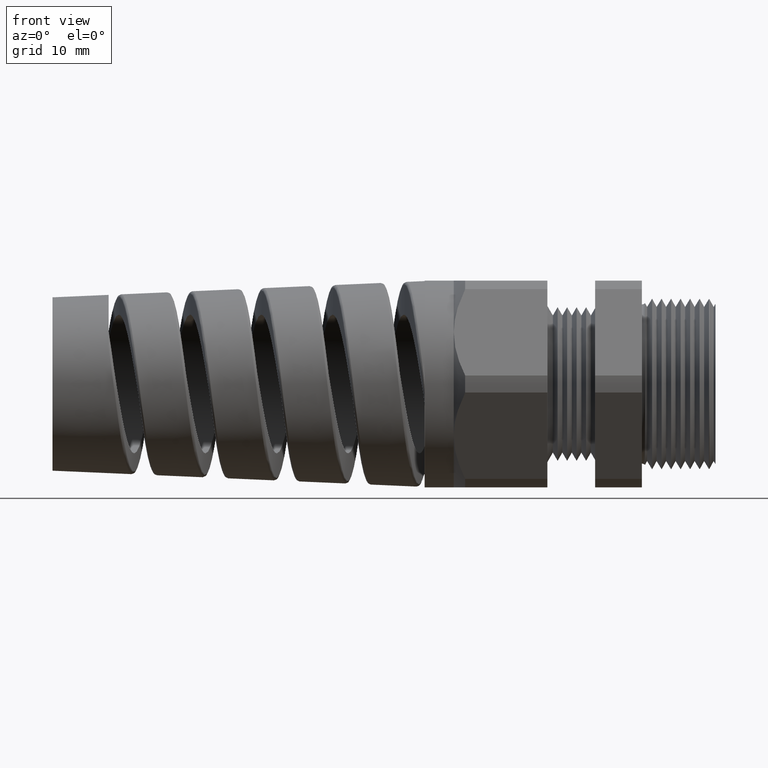
[diagram: clean part render]
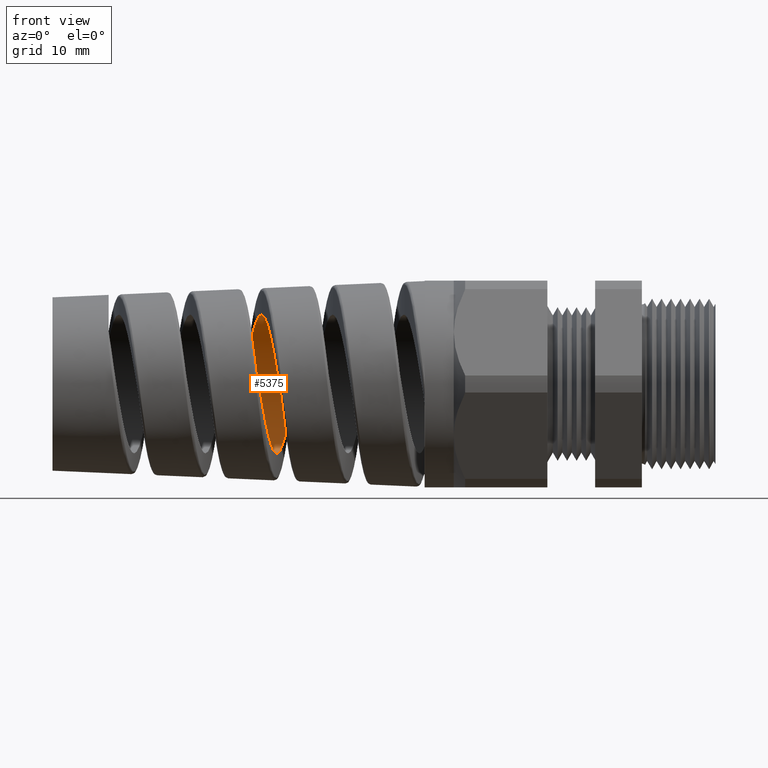
[diagram: same view with one face highlighted and labeled with its STEP entity id]
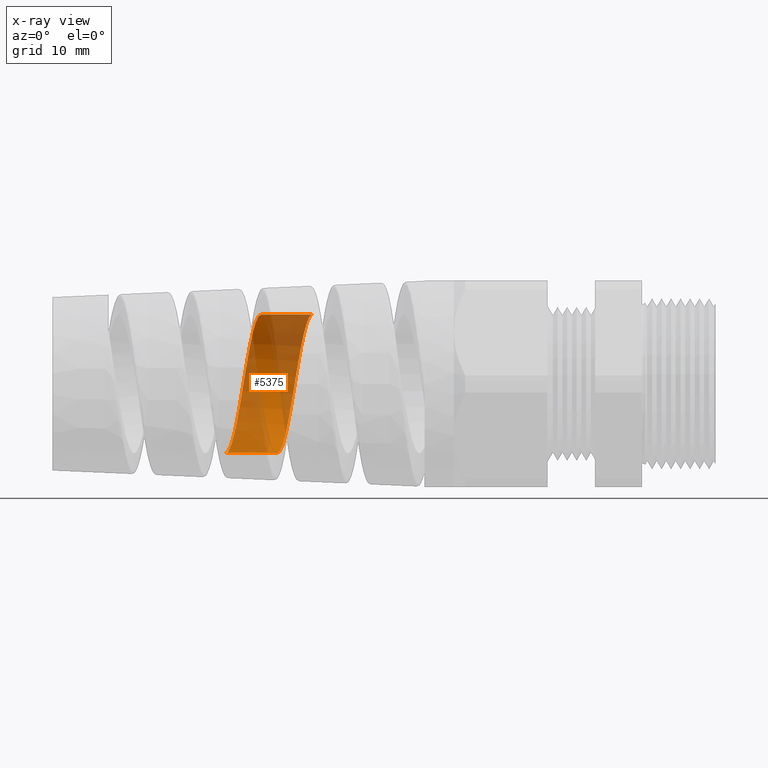
[diagram: x-ray of the same camera — body ghosted, the highlighted face saturated]
A machine part, front view. The second image highlights one B-rep face of the part: STEP entity #5375.
The next image is the same camera in x-ray: the body ghosted, the highlighted face saturated — about 64% of this face is hidden behind the body in this view.
In plain terms, the highlighted cylindrical surface (partial cylindrical patch) has radius 7.4168 mm, axis along (1, 0, 0).
Its self-contained STEP definition (entity closure, byte-faithful):
#1143 = ORIENTED_EDGE ( 'NONE', *, *, #1144, .T. ) ;
#1144 = EDGE_CURVE ( 'NONE', #9089, #9114, #4748, .T. ) ;
#1145 = ORIENTED_EDGE ( 'NONE', *, *, #9086, .T. ) ;
#1146 = ORIENTED_EDGE ( 'NONE', *, *, #1147, .T. ) ;
#1147 = EDGE_CURVE ( 'NONE', #8925, #9100, #4774, .T. ) ;
#1470 = ORIENTED_EDGE ( 'NONE', *, *, #9101, .F. ) ;
#4490 = CARTESIAN_POINT ( 'NONE',  ( -1.835008590539918900, 0.06628252923120450700, -0.2845399725685768800 ) ) ;
#4491 = CARTESIAN_POINT ( 'NONE',  ( -1.839724824223382600, 0.03800162559337094700, -0.2901540196769796800 ) ) ;
#4492 = CARTESIAN_POINT ( 'NONE',  ( -1.833430171448384900, 0.07565399582245577200, -0.2821910254911357800 ) ) ;
#4743 = CARTESIAN_POINT ( 'NONE',  ( -1.927172396364699400, 0.09411178506849399200, 0.2770720832975551700 ) ) ;
#4744 = CARTESIAN_POINT ( 'NONE',  ( -1.924060416900707800, 0.07581038820734067900, 0.2826449708920728600 ) ) ;
#4745 = CARTESIAN_POINT ( 'NONE',  ( -1.917761459007860900, 0.03800626351236475300, 0.2901567136299919000 ) ) ;
#4746 = CARTESIAN_POINT ( 'NONE',  ( -1.914661126411952400, 0.01903279155053612000, 0.2920000000000624300 ) ) ;
#4747 = CARTESIAN_POINT ( 'NONE',  ( -1.911550332857960200, -9.587207108140227300E-013, 0.2919999999999999300 ) ) ;
#4748 = B_SPLINE_CURVE_WITH_KNOTS ( 'NONE', 3,
 ( #4747, #4746, #4745, #4744, #4743, #4813, #4812, #4811, #4810, #4809, #4808, #4807, #4806, #4805, #4804, #4803, #4802, #4801, #4800, #4799, #4798, #4797, #4796, #4795, #4794, #4793, #4792, #4791, #4790, #4789, #4788, #4787, #4786, #4785, #4784, #4783, #4782, #4781, #4780, #4779, #4778, #4777 ),
 .UNSPECIFIED., .F., .F.,
 ( 4, 2, 2, 2, 2, 2, 2, 2, 2, 2, 2, 2, 2, 2, 2, 2, 2, 2, 2, 2, 4 ),
 ( 0.1212132349054047800, 0.1226819882888340000, 0.1241507416722632400, 0.1248851183639778500, 0.1256194950556924800, 0.1270882484391217000, 0.1285570018225509200, 0.1300257552059801700, 0.1307601318976947800, 0.1314945085894093900, 0.1329632619728386100, 0.1344320153562678600, 0.1351663920479824800, 0.1359007687396970900, 0.1373695221231263100, 0.1388382755065555300, 0.1403070288899847500, 0.1410414055816993600, 0.1417757822734139700, 0.1432445356568431700, 0.1447132890402723900 ),
 .UNSPECIFIED. ) ;
#4771 = CARTESIAN_POINT ( 'NONE',  ( -1.842825194809832600, 0.01904566681049143000, -0.2920000000000492200 ) ) ;
#4772 = CARTESIAN_POINT ( 'NONE',  ( -1.845941189765094400, -7.576700375818644900E-013, -0.2919999999999999300 ) ) ;
#4774 = B_SPLINE_CURVE_WITH_KNOTS ( 'NONE', 3,
 ( #4772, #4771, #4491, #4490, #4492, #4859, #4858, #4857, #4856, #4855, #4854, #4853, #4852, #4851, #4850, #4849, #4848, #4847, #4846, #4845, #4844, #4843, #4842, #4841, #4840, #4839, #4838, #4837, #4836, #4835, #4834, #4833, #4832, #4831, #4830, #4829, #4828, #4827, #4826, #4825, #4824, #4823, #4822, #4821, #4820, #4819, #4818, #4817 ),
 .UNSPECIFIED., .F., .F.,
 ( 4, 2, 2, 2, 2, 2, 2, 2, 2, 2, 2, 2, 2, 2, 2, 2, 2, 2, 2, 2, 2, 2, 2, 4 ),
 ( 0.1108696754372933000, 0.1123389271520545400, 0.1130735530094351500, 0.1138081788668157800, 0.1145428047241964000, 0.1152774305815770200, 0.1167466822963382600, 0.1174813081537188800, 0.1182159340110994900, 0.1196851857258607300, 0.1204198115832413600, 0.1211544374406219900, 0.1226236891553832100, 0.1233583150127638400, 0.1240929408701444700, 0.1248275667275250800, 0.1255621925849057000, 0.1270314442996669500, 0.1285006960144282100, 0.1299699477291894300, 0.1307045735865700600, 0.1314391994439506900, 0.1329084511587119200, 0.1343777028734731700 ),
 .UNSPECIFIED. ) ;
#4777 = CARTESIAN_POINT ( 'NONE',  ( -2.061481766486365200, 6.220023044168193400E-015, -0.2919999999999999800 ) ) ;
#4778 = CARTESIAN_POINT ( 'NONE',  ( -2.058371126605370400, 0.01903190467245464600, -0.2919999999999997000 ) ) ;
#4779 = CARTESIAN_POINT ( 'NONE',  ( -2.055269675412615600, 0.03800701964876594000, -0.2901569214517650800 ) ) ;
#4780 = CARTESIAN_POINT ( 'NONE',  ( -2.048968847912352200, 0.07582006960116534400, -0.2826426890167545400 ) ) ;
#4781 = CARTESIAN_POINT ( 'NONE',  ( -2.045859413055716400, 0.09411111890419172900, -0.2770723475519482600 ) ) ;
#4782 = CARTESIAN_POINT ( 'NONE',  ( -2.041194997017380600, 0.1204798660323442000, -0.2661561552935888300 ) ) ;
#4783 = CARTESIAN_POINT ( 'NONE',  ( -2.039638832991393700, 0.1290999900564052400, -0.2620856231554796200 ) ) ;
#4784 = CARTESIAN_POINT ( 'NONE',  ( -2.036508673530955900, 0.1459924057735040900, -0.2530650089479469800 ) ) ;
#4785 = CARTESIAN_POINT ( 'NONE',  ( -2.034927075478601300, 0.1543019325088521000, -0.2480862650623232900 ) ) ;
#4786 = CARTESIAN_POINT ( 'NONE',  ( -2.030226816928205400, 0.1782090931734449700, -0.2321056747786600600 ) ) ;
#4787 = CARTESIAN_POINT ( 'NONE',  ( -2.027131672498813800, 0.1929158003116876500, -0.2200251639956014000 ) ) ;
#4788 = CARTESIAN_POINT ( 'NONE',  ( -2.020899201581703800, 0.2198910295955499600, -0.1930686766531514700 ) ) ;
#4789 = CARTESIAN_POINT ( 'NONE',  ( -2.017734688814023500, 0.2322335362483403400, -0.1780321511139902300 ) ) ;
#4790 = CARTESIAN_POINT ( 'NONE',  ( -2.011498605259076600, 0.2534212477369053900, -0.1463062998785560600 ) ) ;
#4791 = CARTESIAN_POINT ( 'NONE',  ( -2.008403461883655700, 0.2623996206519053600, -0.1295278740511081300 ) ) ;
#4792 = CARTESIAN_POINT ( 'NONE',  ( -2.003707119169917000, 0.2734053822998912500, -0.1029818173177487900 ) ) ;
#4793 = CARTESIAN_POINT ( 'NONE',  ( -2.002125771264694700, 0.2766695219055483300, -0.09386041749659704300 ) ) ;
#4794 = CARTESIAN_POINT ( 'NONE',  ( -1.998993868141977900, 0.2822274229774220400, -0.07552141447035710900 ) ) ;
#4795 = CARTESIAN_POINT ( 'NONE',  ( -1.997437069635046700, 0.2845397579984874600, -0.06626948344003412400 ) ) ;
#4796 = CARTESIAN_POINT ( 'NONE',  ( -1.992771911199000800, 0.2901053176298934400, -0.03827503039641126600 ) ) ;
#4797 = CARTESIAN_POINT ( 'NONE',  ( -1.989668276005744300, 0.2920001916185342400, -0.01929123438346434400 ) ) ;
#4798 = CARTESIAN_POINT ( 'NONE',  ( -1.983361809603649800, 0.2919998083526604300, 0.01929703478019656100 ) ) ;
#4799 = CARTESIAN_POINT ( 'NONE',  ( -1.980260259449853500, 0.2901054662317486000, 0.03827425434467220800 ) ) ;
#4800 = CARTESIAN_POINT ( 'NONE',  ( -1.975595028112758100, 0.2845397087213393200, 0.06626974559759918300 ) ) ;
#4801 = CARTESIAN_POINT ( 'NONE',  ( -1.974038075981751500, 0.2822271443022140200, 0.07552267014128860600 ) ) ;
#4802 = CARTESIAN_POINT ( 'NONE',  ( -1.970905183828790100, 0.2766680770433079800, 0.09386484875293227300 ) ) ;
#4803 = CARTESIAN_POINT ( 'NONE',  ( -1.969323546470858900, 0.2734037894867499800, 0.1029858877106655500 ) ) ;
#4804 = CARTESIAN_POINT ( 'NONE',  ( -1.964627491067406900, 0.2623997402596952600, 0.1295271284508377200 ) ) ;
#4805 = CARTESIAN_POINT ( 'NONE',  ( -1.961532911561967700, 0.2534219822901895800, 0.1463053116087967800 ) ) ;
#4806 = CARTESIAN_POINT ( 'NONE',  ( -1.955297122504476800, 0.2322317476646494300, 0.1780347176520884200 ) ) ;
#4807 = CARTESIAN_POINT ( 'NONE',  ( -1.952132507323167900, 0.2198891621142743400, 0.1930706073712889200 ) ) ;
#4808 = CARTESIAN_POINT ( 'NONE',  ( -1.945899610562509300, 0.1929166787161176500, 0.2200242216647482500 ) ) ;
#4809 = CARTESIAN_POINT ( 'NONE',  ( -1.942804160233673900, 0.1782096707754065600, 0.2321055309837090900 ) ) ;
#4810 = CARTESIAN_POINT ( 'NONE',  ( -1.938103732483577000, 0.1542978178972851900, 0.2480888942696010400 ) ) ;
#4811 = CARTESIAN_POINT ( 'NONE',  ( -1.936522587776422300, 0.1459887125989037800, 0.2530670788897459400 ) ) ;
#4812 = CARTESIAN_POINT ( 'NONE',  ( -1.933393190047953300, 0.1290990416550695200, 0.2620860318060023700 ) ) ;
#4813 = CARTESIAN_POINT ( 'NONE',  ( -1.931837175637484100, 0.1204797594736392400, 0.2661561936440337000 ) ) ;
#4817 = CARTESIAN_POINT ( 'NONE',  ( -1.695872655686225600, -9.706095852270749000E-013, 0.2919999999999999300 ) ) ;
#4818 = CARTESIAN_POINT ( 'NONE',  ( -1.698985231698055600, 0.01902453244057054200, 0.2920000000000633200 ) ) ;
#4819 = CARTESIAN_POINT ( 'NONE',  ( -1.702103482538662900, 0.03808557415844986100, 0.2901457300574203400 ) ) ;
#4820 = CARTESIAN_POINT ( 'NONE',  ( -1.708405332203782700, 0.07587061634992503500, 0.2826282102059430300 ) ) ;
#4821 = CARTESIAN_POINT ( 'NONE',  ( -1.711507823821526900, 0.09410339489077955400, 0.2770755577018644300 ) ) ;
#4822 = CARTESIAN_POINT ( 'NONE',  ( -1.716178659201514000, 0.1204839744911144800, 0.2661544481917720900 ) ) ;
#4823 = CARTESIAN_POINT ( 'NONE',  ( -1.717738345648152500, 0.1291149454457772300, 0.2620789875916673700 ) ) ;
#4824 = CARTESIAN_POINT ( 'NONE',  ( -1.720878106976739200, 0.1460415369033619400, 0.2530374169435092300 ) ) ;
#4825 = CARTESIAN_POINT ( 'NONE',  ( -1.722460072524499000, 0.1543443777157815500, 0.2480591361290619700 ) ) ;
#4826 = CARTESIAN_POINT ( 'NONE',  ( -1.727155102468547200, 0.1782030170315624700, 0.2321072435731431300 ) ) ;
#4827 = CARTESIAN_POINT ( 'NONE',  ( -1.730251994911531100, 0.1929080054359266800, 0.2200341296055002300 ) ) ;
#4828 = CARTESIAN_POINT ( 'NONE',  ( -1.736498395347703300, 0.2199168307450225500, 0.1930417164956392500 ) ) ;
#4829 = CARTESIAN_POINT ( 'NONE',  ( -1.739664893416885700, 0.2322504331990085900, 0.1780078510319037800 ) ) ;
#4830 = CARTESIAN_POINT ( 'NONE',  ( -1.745899636639628400, 0.2534138148725402800, 0.1463164282706130900 ) ) ;
#4831 = CARTESIAN_POINT ( 'NONE',  ( -1.748998771415498200, 0.2624006715672123100, 0.1295318428510350000 ) ) ;
#4832 = CARTESIAN_POINT ( 'NONE',  ( -1.753709528336558200, 0.2734266370180453200, 0.1029272891745885400 ) ) ;
#4833 = CARTESIAN_POINT ( 'NONE',  ( -1.755290535999095300, 0.2766841081605905300, 0.09381555590345851100 ) ) ;
#4834 = CARTESIAN_POINT ( 'NONE',  ( -1.758419427054505300, 0.2822296455402476000, 0.07551080330868172000 ) ) ;
#4835 = CARTESIAN_POINT ( 'NONE',  ( -1.759976014720726200, 0.2845398228202191700, 0.06626883476040396100 ) ) ;
#4836 = CARTESIAN_POINT ( 'NONE',  ( -1.763088447632720000, 0.2882493131361417200, 0.04761095155114986000 ) ) ;
#4837 = CARTESIAN_POINT ( 'NONE',  ( -1.764644072040822300, 0.2896486254568394500, 0.03819499979402869000 ) ) ;
#4838 = CARTESIAN_POINT ( 'NONE',  ( -1.767768406596499600, 0.2915252196879558100, 0.01918933360467378600 ) ) ;
#4839 = CARTESIAN_POINT ( 'NONE',  ( -1.769344007118127000, 0.2920020875207303700, 0.009557340417716261900 ) ) ;
#4840 = CARTESIAN_POINT ( 'NONE',  ( -1.774065160026694300, 0.2919958042009073700, -0.01930538314468224400 ) ) ;
#4841 = CARTESIAN_POINT ( 'NONE',  ( -1.777166654005115900, 0.2901075635557755500, -0.03826369726331372400 ) ) ;
#4842 = CARTESIAN_POINT ( 'NONE',  ( -1.781838730959896400, 0.2845386667444402300, -0.06627499051247051600 ) ) ;
#4843 = CARTESIAN_POINT ( 'NONE',  ( -1.783399549323876300, 0.2822230813494811500, -0.07554053903626700700 ) ) ;
#4844 = CARTESIAN_POINT ( 'NONE',  ( -1.786542238529451400, 0.2766492566172818500, -0.09392246534983507400 ) ) ;
#4845 = CARTESIAN_POINT ( 'NONE',  ( -1.788122465529400600, 0.2733877547570014400, -0.1030268153414730000 ) ) ;
#4846 = CARTESIAN_POINT ( 'NONE',  ( -1.792813881283309700, 0.2624014870329366400, -0.1295184007190677300 ) ) ;
#4847 = CARTESIAN_POINT ( 'NONE',  ( -1.795910674128807800, 0.2534297328657513800, -0.1462953809213598500 ) ) ;
#4848 = CARTESIAN_POINT ( 'NONE',  ( -1.800598503300549200, 0.2375135831694081300, -0.1701250710649712100 ) ) ;
#4849 = CARTESIAN_POINT ( 'NONE',  ( -1.802175733149329100, 0.2317652928655179500, -0.1778800505997755500 ) ) ;
#4850 = CARTESIAN_POINT ( 'NONE',  ( -1.805322239934653100, 0.2195604010010555100, -0.1927425580682009500 ) ) ;
#4851 = CARTESIAN_POINT ( 'NONE',  ( -1.806884212947115400, 0.2131358969383671500, -0.1998193841372624400 ) ) ;
#4852 = CARTESIAN_POINT ( 'NONE',  ( -1.811558306654734900, 0.1929261044608540600, -0.2200143303978808800 ) ) ;
#4853 = CARTESIAN_POINT ( 'NONE',  ( -1.814658189705832500, 0.1782130856501308000, -0.2321065026090872700 ) ) ;
#4854 = CARTESIAN_POINT ( 'NONE',  ( -1.819373667613503100, 0.1542447899303752700, -0.2481227073282997200 ) ) ;
#4855 = CARTESIAN_POINT ( 'NONE',  ( -1.820952738666316700, 0.1459530328011042200, -0.2530870166830367400 ) ) ;
#4856 = CARTESIAN_POINT ( 'NONE',  ( -1.824079447145213100, 0.1290925821119757700, -0.2620885938781441500 ) ) ;
#4857 = CARTESIAN_POINT ( 'NONE',  ( -1.825635639712738900, 0.1204817053631950900, -0.2661552606271214700 ) ) ;
#4858 = CARTESIAN_POINT ( 'NONE',  ( -1.828747966038724700, 0.1029058434076513300, -0.2734316212131922000 ) ) ;
#4859 = CARTESIAN_POINT ( 'NONE',  ( -1.830303970361203400, 0.09394083795761593000, -0.2766413217786958800 ) ) ;
#5375 = ADVANCED_FACE ( 'NONE', ( #5727 ), #5726, .F. ) ;
#5726 = CYLINDRICAL_SURFACE ( 'NONE', #5784, 0.2919999999999999300 ) ;
#5727 = FACE_OUTER_BOUND ( 'NONE', #9153, .T. ) ;
#5781 = DIRECTION ( 'NONE',  ( 0.0000000000000000000, 0.0000000000000000000, -1.000000000000000000 ) ) ;
#5782 = DIRECTION ( 'NONE',  ( 1.000000000000000000, 0.0000000000000000000, 0.0000000000000000000 ) ) ;
#5783 = CARTESIAN_POINT ( 'NONE',  ( 0.09602717987635048200, 0.0000000000000000000, 0.0000000000000000000 ) ) ;
#5784 = AXIS2_PLACEMENT_3D ( 'NONE', #5783, #5782, #5781 ) ;
#6155 = CARTESIAN_POINT ( 'NONE',  ( -1.845941189765094400, -7.576700375818644900E-013, -0.2919999999999999300 ) ) ;
#6232 = CARTESIAN_POINT ( 'NONE',  ( -1.911550332857960200, -9.587207108140227300E-013, 0.2919999999999999300 ) ) ;
#6233 = DIRECTION ( 'NONE',  ( 1.000000000000000000, 0.0000000000000000000, 0.0000000000000000000 ) ) ;
#6234 = VECTOR ( 'NONE', #6233, 39.37007874015748100 ) ;
#6235 = CARTESIAN_POINT ( 'NONE',  ( 0.09602717987635048200, 0.0000000000000000000, -0.2919999999999999300 ) ) ;
#6236 = LINE ( 'NONE', #6235, #6234 ) ;
#6247 = CARTESIAN_POINT ( 'NONE',  ( -1.695872655686225600, -9.706095852270749000E-013, 0.2919999999999999300 ) ) ;
#6335 = LINE ( 'NONE', #6373, #6372 ) ;
#6371 = DIRECTION ( 'NONE',  ( 1.000000000000000000, 0.0000000000000000000, 0.0000000000000000000 ) ) ;
#6372 = VECTOR ( 'NONE', #6371, 39.37007874015748100 ) ;
#6373 = CARTESIAN_POINT ( 'NONE',  ( 0.09602717987635048200, 3.575968653510270800E-017, 0.2919999999999999300 ) ) ;
#6415 = CARTESIAN_POINT ( 'NONE',  ( -2.061481766486365200, 6.220023044168193400E-015, -0.2919999999999999800 ) ) ;
#8925 = VERTEX_POINT ( 'NONE', #6155 ) ;
#9086 = EDGE_CURVE ( 'NONE', #9114, #8925, #6236, .T. ) ;
#9089 = VERTEX_POINT ( 'NONE', #6232 ) ;
#9100 = VERTEX_POINT ( 'NONE', #6247 ) ;
#9101 = EDGE_CURVE ( 'NONE', #9089, #9100, #6335, .T. ) ;
#9114 = VERTEX_POINT ( 'NONE', #6415 ) ;
#9153 = EDGE_LOOP ( 'NONE', ( #1470, #1143, #1145, #1146 ) ) ;